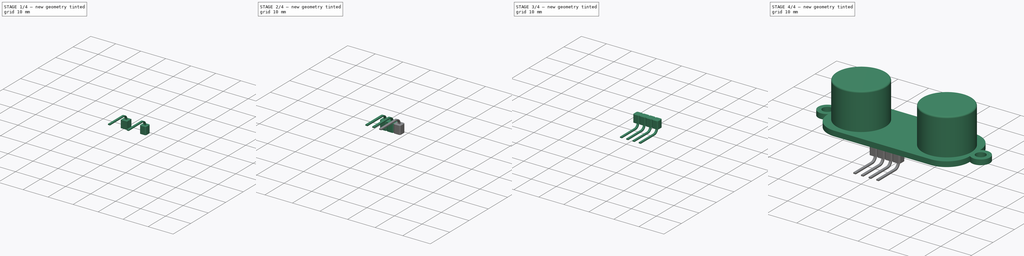
[diagram: build sequence overview — one tinted view per stage of 4, left to right]
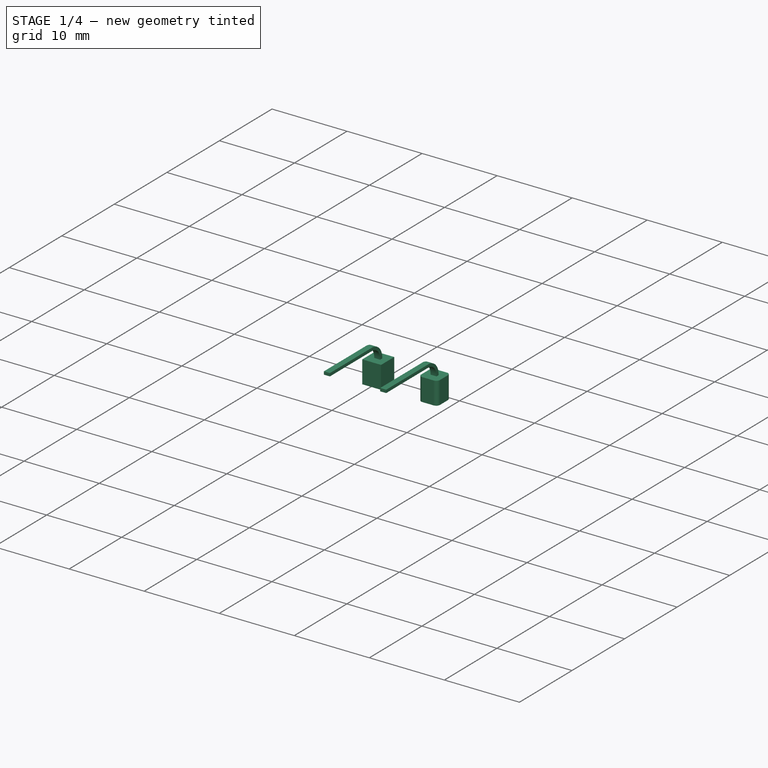
[diagram: stage 1 of 4 — iso view after this stage's code; geometry added in this stage tinted green]
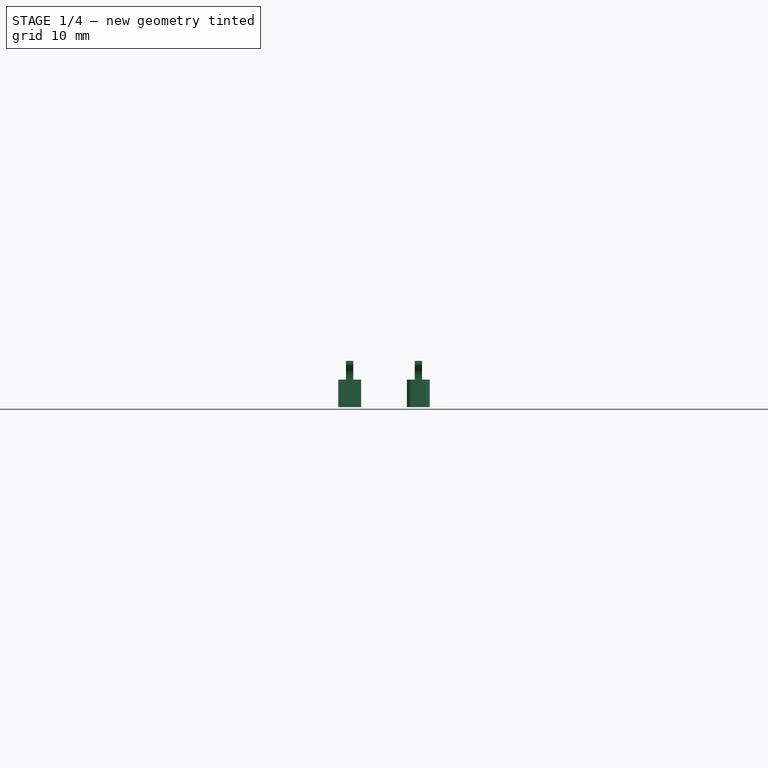
[diagram: stage 1 of 4 — front view after this stage's code; geometry added in this stage tinted green]
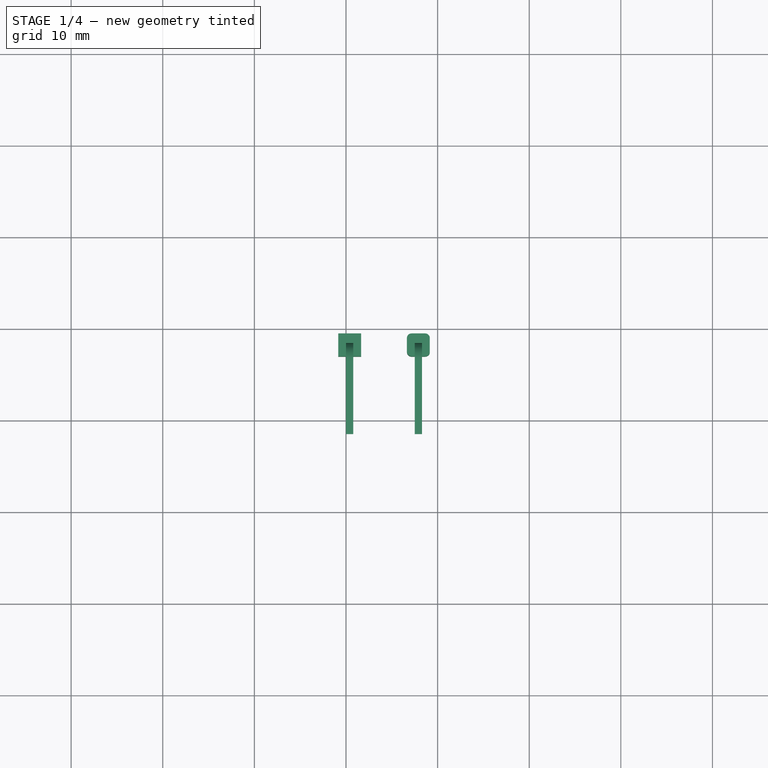
[diagram: stage 1 of 4 — top view after this stage's code; geometry added in this stage tinted green]
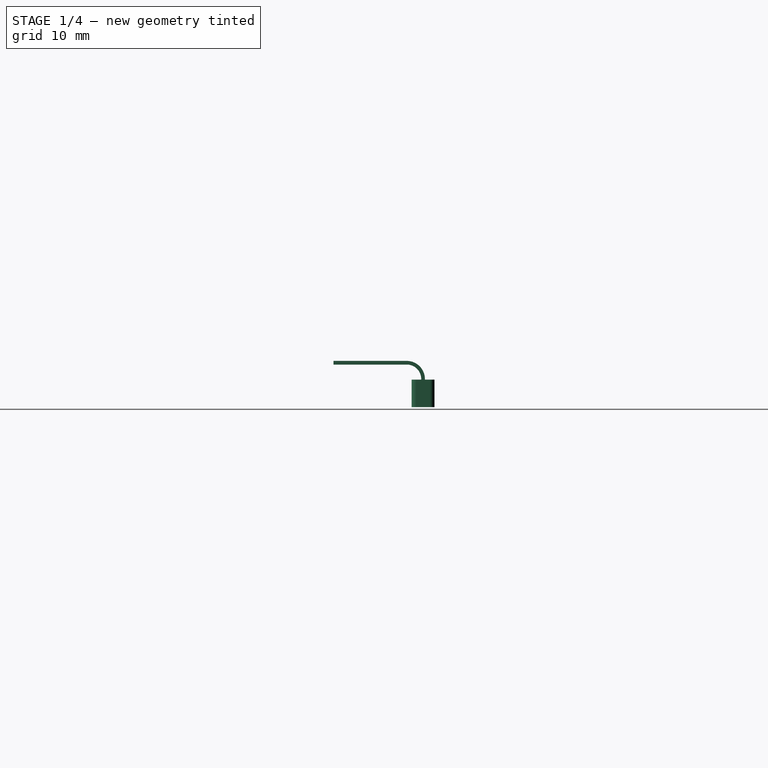
[diagram: stage 1 of 4 — right view after this stage's code; geometry added in this stage tinted green]
FCSTD DOCUMENT  (FreeCAD 0.14R3702 (Git))
Label: BAT-ultrasonic
License: CC-BY 3.0
LicenseURL: http://creativecommons.org/licenses/by/3.0/
objects: PartDesign::Pad×7, Sketcher::SketchObject×5, Part::Fillet×4, PartDesign::Fillet×2, Part::MultiFuse×1
note: 26 computed .brp shape members not serialized (recipe doc carries the construction recipe); baked Part::Feature solids carry a one-line shape summary decoded from their .brp

FEATURE [Sketcher::SketchObject] Sketch002
  ExternalGeometry = -> [Fillet001]
  Placement = pos=(0,0,13.68) rot=(0,0,1;0rad)
  Support = -> Fillet001 [Face18]
  sketch-geometry (15):
    g0: Circle CenterX=-14 CenterY=0 CenterZ=0 NormalX=0 NormalY=0 NormalZ=1 Radius=6.75
    g1: Circle CenterX=-14 CenterY=0 CenterZ=0 NormalX=0 NormalY=0 NormalZ=1 Radius=6
    g2: Circle CenterX=-14 CenterY=0 CenterZ=0 NormalX=0 NormalY=0 NormalZ=1 Radius=5.25
    g3: Circle CenterX=-14 CenterY=0 CenterZ=0 NormalX=0 NormalY=0 NormalZ=1 Radius=4.25
    g4: Circle CenterX=-14 CenterY=0 CenterZ=0 NormalX=0 NormalY=0 NormalZ=1 Radius=3.5
    g5: Circle CenterX=-14 CenterY=0 CenterZ=0 NormalX=0 NormalY=0 NormalZ=1 Radius=2.5
    g6: Circle CenterX=-14 CenterY=0 CenterZ=0 NormalX=0 NormalY=0 NormalZ=1 Radius=0.8
    g7: Circle CenterX=-14 CenterY=0 CenterZ=0 NormalX=0 NormalY=0 NormalZ=1 Radius=1.75
    g8: Circle [constr] CenterX=-14 CenterY=0 CenterZ=0 NormalX=0 NormalY=0 NormalZ=1 Radius=0.5
    g9: LineSegment StartX=-17.6745 StartY=6.53818 StartZ=0 EndX=-21.5 EndY=0.0169203 EndZ=0
    g10: LineSegment StartX=-21.5 StartY=0.0169203 StartZ=0 EndX=-17.825 EndY=-6.45133 EndZ=0
    g11: LineSegment StartX=-17.825 StartY=-6.45133 StartZ=0 EndX=-10.2647 EndY=-6.50363 EndZ=0
    g12: LineSegment StartX=-10.2647 StartY=-6.50363 StartZ=0 EndX=-6.5005 EndY=-0.0868491 EndZ=0
    g13: LineSegment StartX=-17.6745 StartY=6.53818 StartZ=0 EndX=-10.2354 EndY=6.48671 EndZ=0
    g14: LineSegment StartX=-10.2354 StartY=6.48671 StartZ=0 EndX=-6.5005 EndY=-0.0868491 EndZ=0
  constraints (35):
    c: Coincident(g0,g-3)
    c: Coincident(g1,g0)
    c: Coincident(g2,g0)
    c: Coincident(g3,g0)
    c: Coincident(g4,g0)
    c: Coincident(g5,g0)
    c: Radius(g0) = 6.75
    c: Radius(g1) = 6
    c: Radius(g2) = 5.25
    c: Radius(g3) = 4.25
    c: Radius(g4) = 3.5
    c: Radius(g5) = 2.5
    c: Coincident(g6,g0)
    c: Coincident(g7,g0)
    c: Radius(g7) = 1.75
    c: Radius(g6) = 0.8
    c: Coincident(g8,g0)
    c: Radius(g8) = 0.5
    c: PointOnObject(g9,g-3)
    c: PointOnObject(g9,g-3)
    c: Coincident(g10,g9)
    c: PointOnObject(g10,g-3)
    c: Coincident(g11,g10)
    c: PointOnObject(g11,g-3)
    c: Coincident(g12,g11)
    c: Coincident(g13,g9)
    c: PointOnObject(g13,g-3)
    c: Coincident(g14,g13)
    c: PointOnObject(g14,g-3)
    c: PointOnObject(g12,g-3)
    c: Coincident(g12,g14)
    c: Angle(g14,g12) = 2.0944
    c: Angle(g9,g13) = 2.0944
    c: Angle(g12,g11) = 2.0944
    c: Angle(g10,g9) = 2.0944
FEATURE [Sketcher::SketchObject] Sketch004
  Placement = pos=(0,0,0) rot=(0.57735,0.57735,0.57735;2.0944rad)
  sketch-geometry (8):
    g0: LineSegment StartX=8.47945 StartY=5.04306 StartZ=0 EndX=16.4794 EndY=5.04306 EndZ=0
    g1: LineSegment StartX=8.47945 StartY=5.04306 StartZ=0 EndX=8.47945 EndY=4.64306 EndZ=0
    g2: LineSegment StartX=8.47945 StartY=4.64306 StartZ=0 EndX=16.4794 EndY=4.64306 EndZ=0
    g3: LineSegment StartX=18.0526 StartY=3.06994 StartZ=0 EndX=18.0526 EndY=0 EndZ=0
    g4: LineSegment StartX=18.4526 StartY=3.06994 StartZ=0 EndX=18.4526 EndY=0 EndZ=0
    g5: LineSegment StartX=18.0526 StartY=0 StartZ=0 EndX=18.4526 EndY=0 EndZ=0
    g6: ArcOfCircle CenterX=16.4794 CenterY=3.06994 CenterZ=0 NormalX=0 NormalY=0 NormalZ=1 Radius=1.57312 StartAngle=0 EndAngle=1.5708
    g7: ArcOfCircle CenterX=16.4794 CenterY=3.06994 CenterZ=0 NormalX=0 NormalY=0 NormalZ=1 Radius=1.97312 StartAngle=0 EndAngle=1.5708
  constraints (20):
    c: Horizontal(g0)
    c: Coincident(g1,g0)
    c: Vertical(g1)
    c: Coincident(g2,g1)
    c: Horizontal(g2)
    c: Vertical(g3)
    c: Vertical(g4)
    c: Coincident(g5,g3)
    c: Horizontal(g5)
    c: DistanceY(g1) = -0.4
    c: Equal(g1,g5)
    c: Coincident(g5,g4)
    c: Equal(g4,g3)
    c: Equal(g2,g0)
    c: Tangent(g2,g6)
    c: Tangent(g3,g6)
    c: Tangent(g0,g7)
    c: Tangent(g4,g7)
    c: DistanceX(g0) = 8
    c: PointOnObject(g4,g-1)
FEATURE [PartDesign::Pad] Pad003
  Length = 0.8
  Length2 = 100
  Placement = pos=(0,0,0) rot=(0.57735,0.57735,0.57735;2.0944rad)
  Sketch = -> Sketch004
  Type = 0
FEATURE [PartDesign::Pad] Pad006
  Length = 3
  Length2 = 100
  Placement = pos=(0,0,0) rot=(0.57735,0.57735,0.57735;2.0944rad)
  Reversed = true
  Sketch = -> Sketch005
  Type = 0
FEATURE [PartDesign::Pad] Pad007
  Length = 3
  Length2 = 100
  Placement = pos=(0,0,0) rot=(0.57735,0.57735,0.57735;2.0944rad)
  Reversed = true
  Sketch = -> Sketch005
  Type = 0
FEATURE [Part::Fillet] Fillet005  label="Pin4"
  Base = -> Pad007
  Edges = 4 edges r=0.5: [Edge29,Edge30,Edge32,Edge34]
  Placement = pos=(7.5,0,0) rot=(0,0,1;0rad)
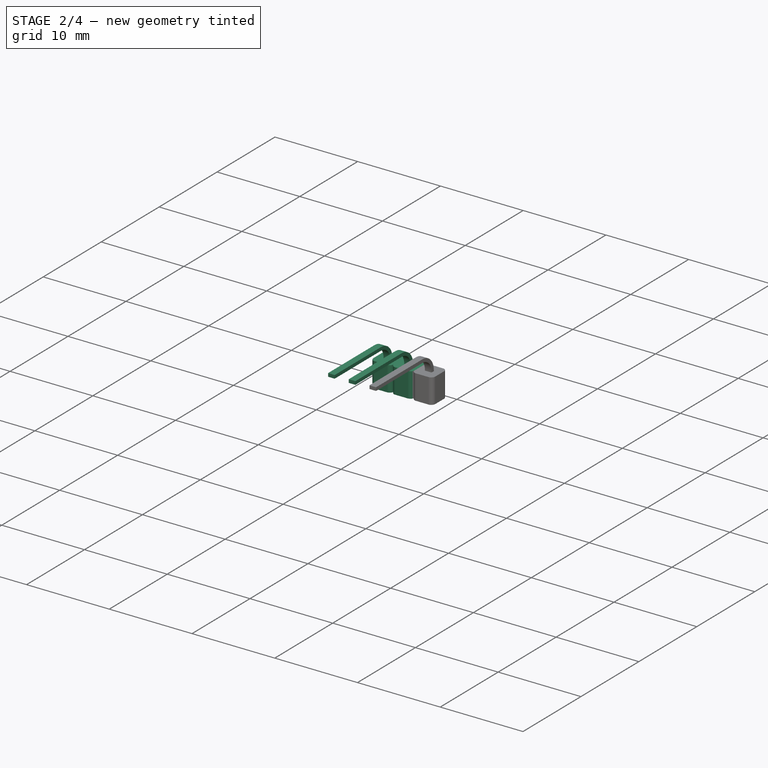
[diagram: stage 2 of 4 — iso view after this stage's code; geometry added in this stage tinted green]
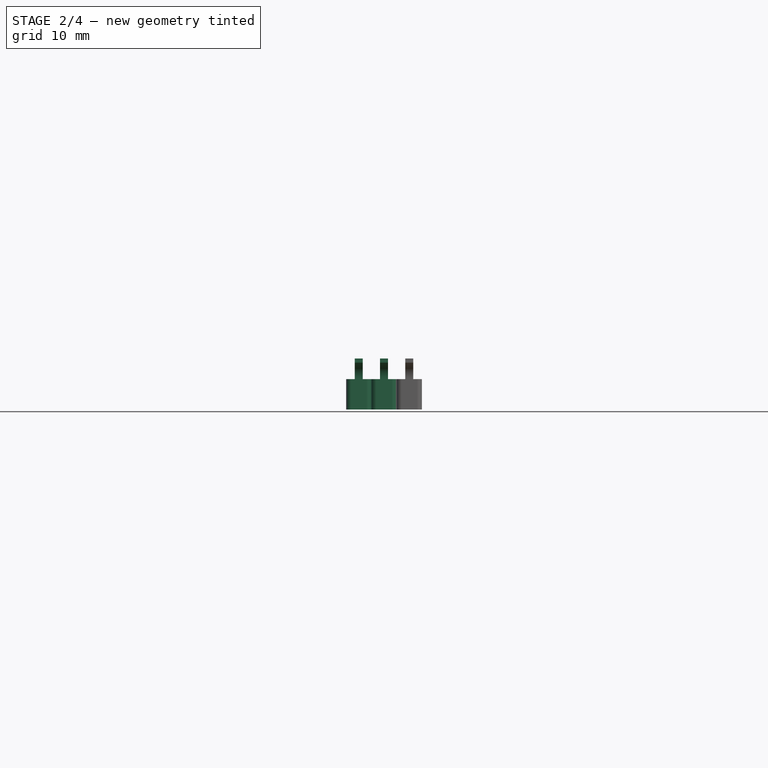
[diagram: stage 2 of 4 — front view after this stage's code; geometry added in this stage tinted green]
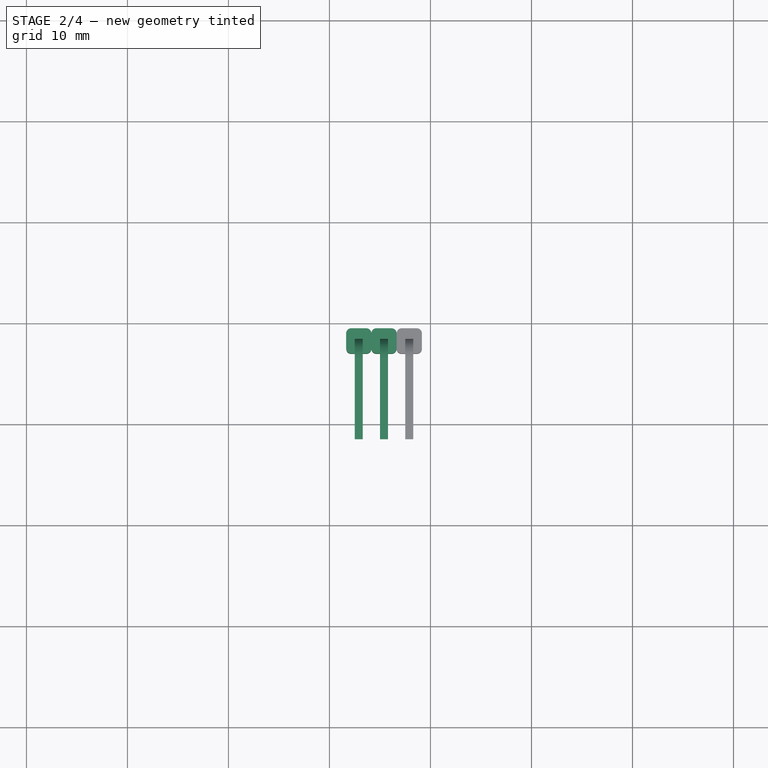
[diagram: stage 2 of 4 — top view after this stage's code; geometry added in this stage tinted green]
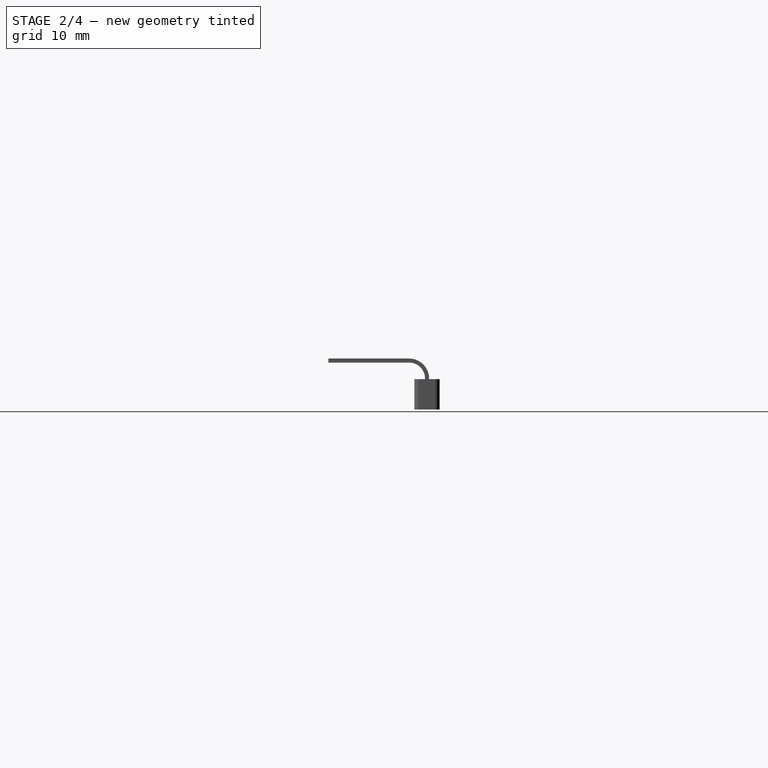
[diagram: stage 2 of 4 — right view after this stage's code; geometry added in this stage tinted green]
FEATURE [PartDesign::Pad] Pad005
  Length = 3
  Length2 = 100
  Placement = pos=(0,0,0) rot=(0.57735,0.57735,0.57735;2.0944rad)
  Reversed = true
  Sketch = -> Sketch005
  Type = 0
FEATURE [Part::Fillet] Fillet003  label="Pin2"
  Base = -> Pad005
  Edges = 4 edges r=0.5: [Edge29,Edge30,Edge32,Edge34]
  Placement = pos=(2.5,0,0) rot=(0,0,1;0rad)
FEATURE [Part::Fillet] Fillet004  label="Pin3"
  Base = -> Pad006
  Edges = 4 edges r=0.5: [Edge29,Edge30,Edge32,Edge34]
  Placement = pos=(5,0,0) rot=(0,0,1;0rad)
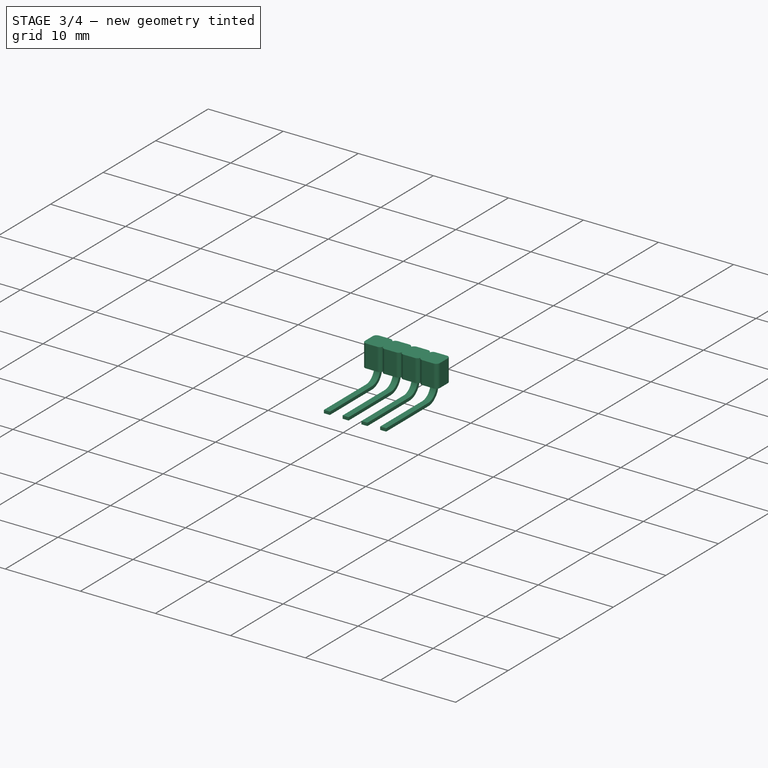
[diagram: stage 3 of 4 — iso view after this stage's code; geometry added in this stage tinted green]
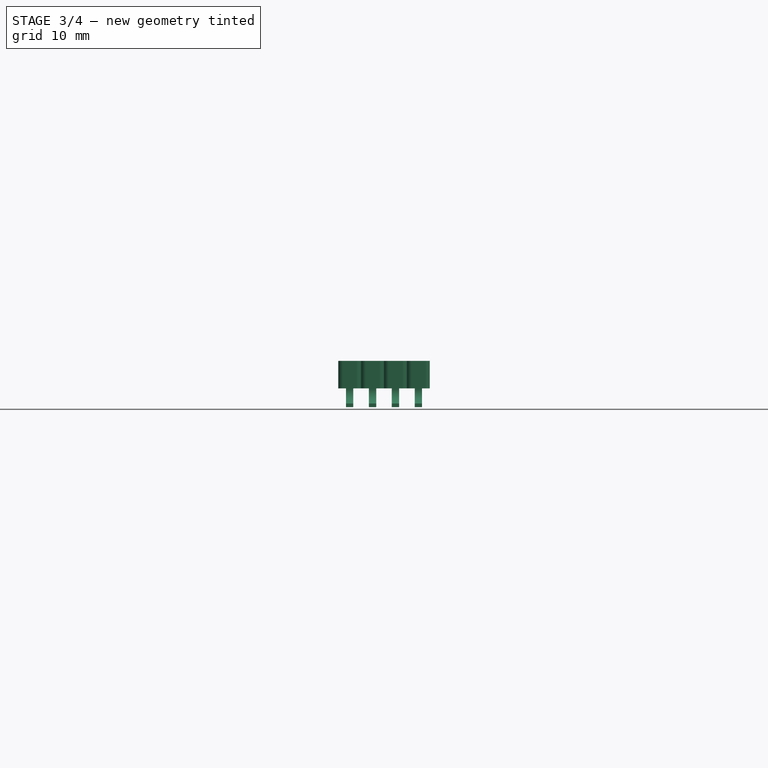
[diagram: stage 3 of 4 — front view after this stage's code; geometry added in this stage tinted green]
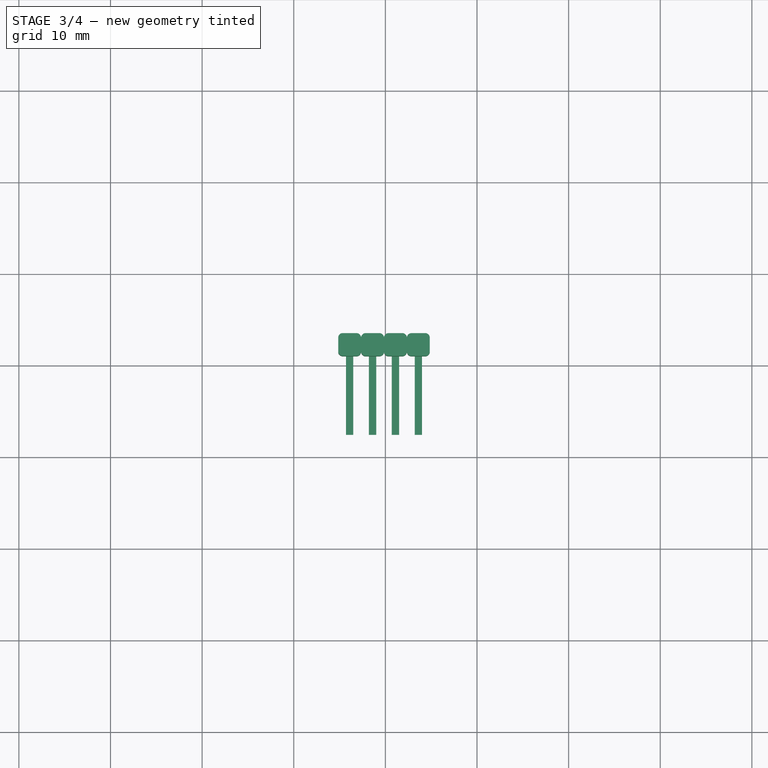
[diagram: stage 3 of 4 — top view after this stage's code; geometry added in this stage tinted green]
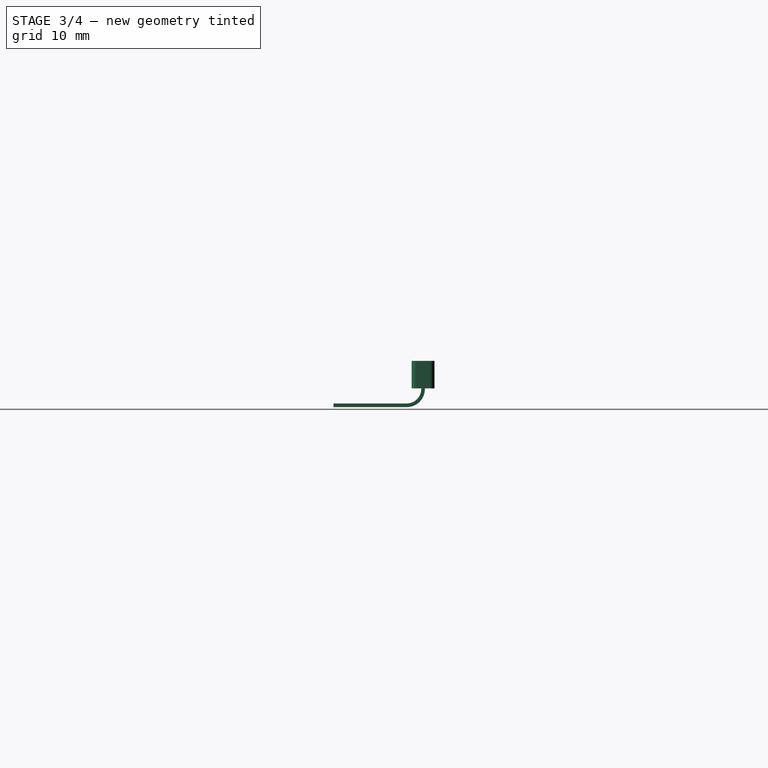
[diagram: stage 3 of 4 — right view after this stage's code; geometry added in this stage tinted green]
FEATURE [Sketcher::SketchObject] Sketch005
  ExternalGeometry = -> [Pad003]
  Placement = pos=(0,0,0) rot=(0.707107,0.707107,0;3.14159rad)
  Support = -> Pad003 [Face7]
  sketch-geometry (10):
    g0: LineSegment StartX=17.0026 StartY=1.65 StartZ=0 EndX=19.5026 EndY=1.65 EndZ=0
    g1: LineSegment StartX=19.5026 StartY=1.65 StartZ=0 EndX=19.5026 EndY=-0.850002 EndZ=0
    g2: LineSegment StartX=19.5026 StartY=-0.850002 StartZ=0 EndX=17.0026 EndY=-0.850002 EndZ=0
    g3: LineSegment StartX=17.0026 StartY=-0.850002 StartZ=0 EndX=17.0026 EndY=1.65 EndZ=0
    g4: LineSegment [constr] StartX=18.2526 StartY=0.399998 StartZ=0 EndX=18.4526 EndY=0 EndZ=0
    g5: LineSegment [constr] StartX=18.2526 StartY=0.399998 StartZ=0 EndX=18.0526 EndY=0 EndZ=0
    g6: LineSegment [constr] StartX=18.2526 StartY=0.399998 StartZ=0 EndX=17.0026 EndY=1.65 EndZ=0
    g7: LineSegment [constr] StartX=18.2526 StartY=0.399998 StartZ=0 EndX=19.5026 EndY=1.65 EndZ=0
    g8: LineSegment [constr] StartX=17.0026 StartY=-0.850002 StartZ=0 EndX=18.2526 EndY=0.399998 EndZ=0
    g9: LineSegment [constr] StartX=19.5026 StartY=-0.850002 StartZ=0 EndX=18.2526 EndY=0.399998 EndZ=0
  constraints (26):
    c: Coincident(g0,g1)
    c: Coincident(g1,g2)
    c: Coincident(g2,g3)
    c: Coincident(g3,g0)
    c: Horizontal(g0)
    c: Horizontal(g2)
    c: Vertical(g1)
    c: Vertical(g3)
    c: Equal(g1,g0)
    c: DistanceX(g0) = 2.5
    c: Coincident(g4,g-6)
    c: Coincident(g5,g-6)
    c: Coincident(g5,g4)
    c: Coincident(g6,g4)
    c: Coincident(g6,g0)
    c: Angle(g5,g4) = 0.927299
    c: Angle(g-6,g5) = 1.10714
    c: Coincident(g7,g0)
    c: Equal(g6,g7)
    c: Coincident(g7,g4)
    c: Coincident(g8,g2)
    c: Coincident(g8,g4)
    c: Coincident(g9,g1)
    c: Coincident(g9,g4)
    c: Equal(g8,g6)
    c: Equal(g7,g9)
FEATURE [PartDesign::Pad] Pad004
  Length = 3
  Length2 = 100
  Placement = pos=(0,0,0) rot=(0.57735,0.57735,0.57735;2.0944rad)
  Reversed = true
  Sketch = -> Sketch005
  Type = 0
FEATURE [Part::Fillet] Fillet002  label="Pin"
  Base = -> Pad004
  Edges = 4 edges r=0.5: [Edge29,Edge30,Edge32,Edge34]
FEATURE [Part::MultiFuse] Fusion001  label="headers"
  Placement = pos=(4,-26,0) rot=(0,1,0;3.14159rad)
  Shapes = -> [Fillet005,Fillet002,Fillet003,Fillet004]
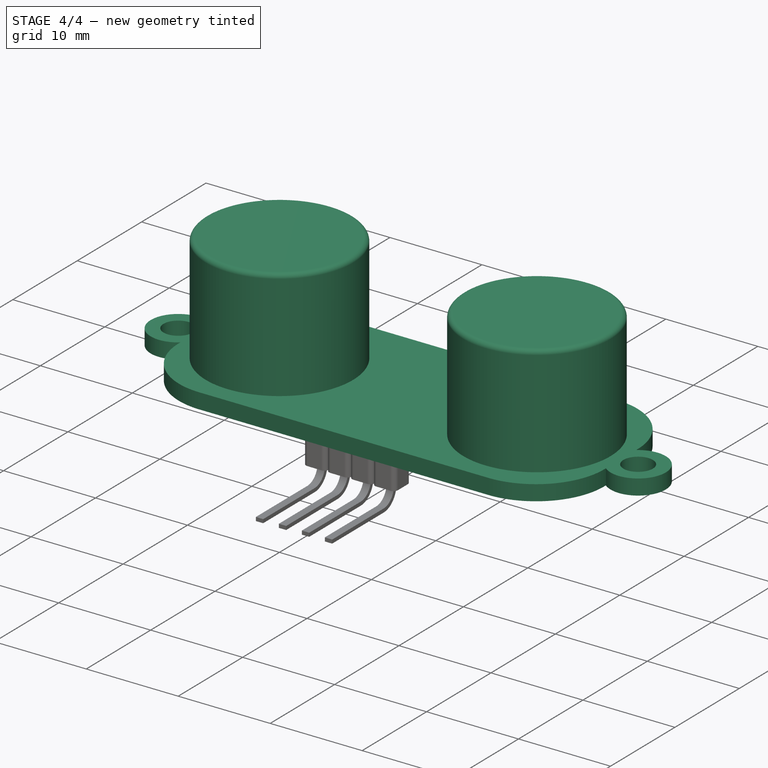
[diagram: stage 4 of 4 — iso view after this stage's code; geometry added in this stage tinted green]
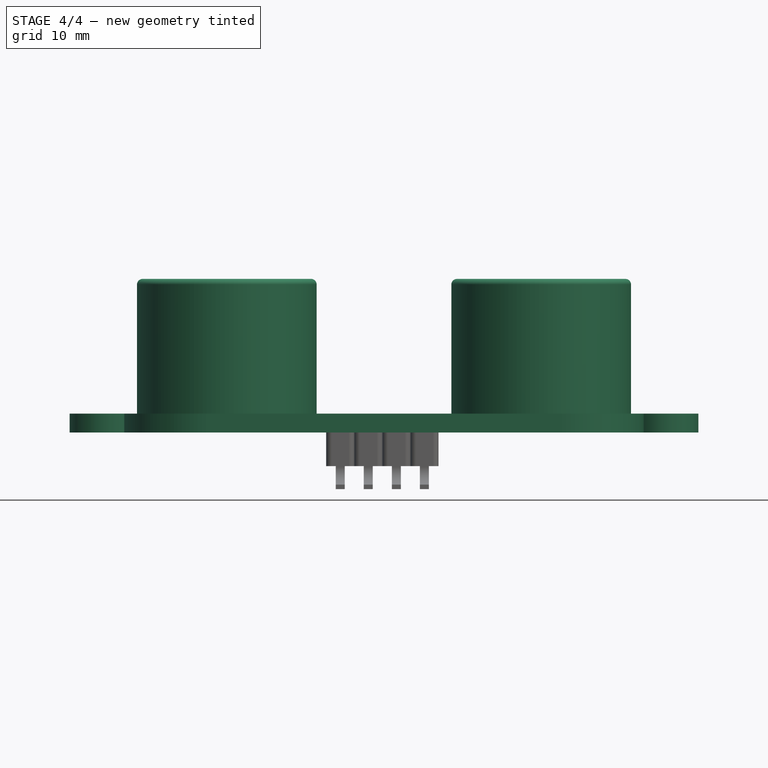
[diagram: stage 4 of 4 — front view after this stage's code; geometry added in this stage tinted green]
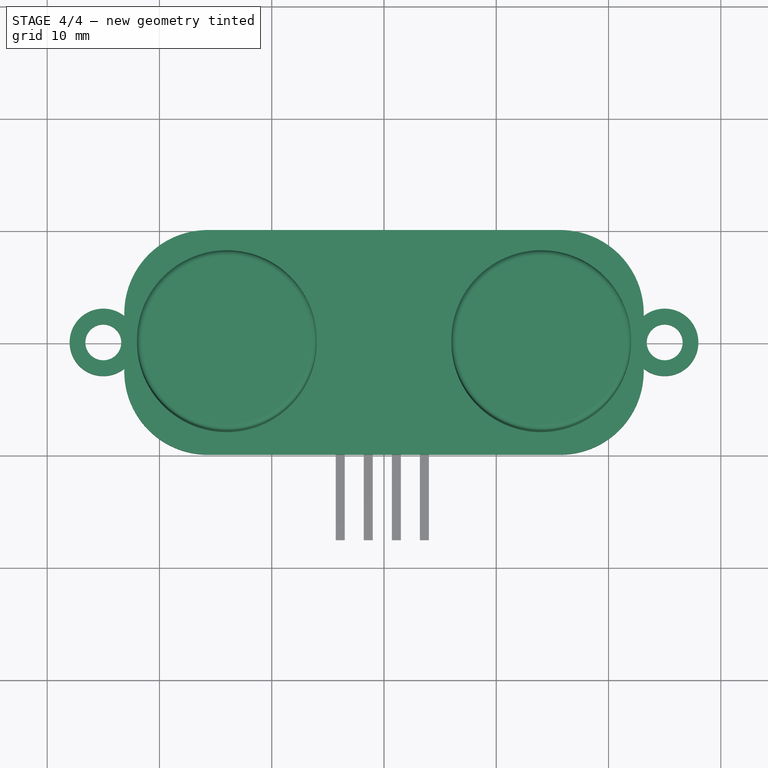
[diagram: stage 4 of 4 — top view after this stage's code; geometry added in this stage tinted green]
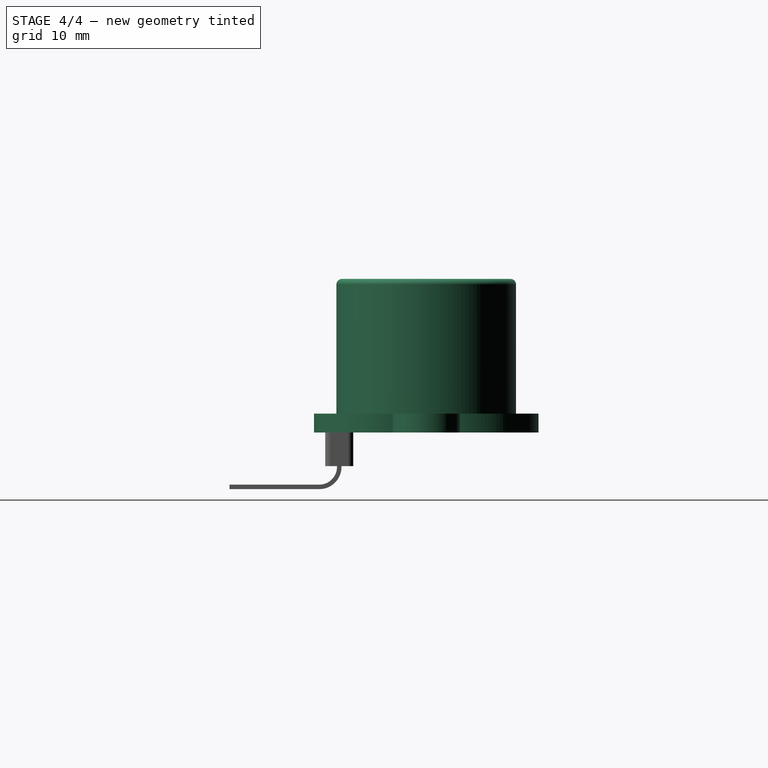
[diagram: stage 4 of 4 — right view after this stage's code; geometry added in this stage tinted green]
FEATURE [Sketcher::SketchObject] Sketch
  sketch-geometry (15):
    g0: LineSegment StartX=-15.86 StartY=-10 StartZ=0 EndX=15.86 EndY=-10 EndZ=0
    g1: ArcOfCircle CenterX=-25 CenterY=0 CenterZ=0 NormalX=0 NormalY=0 NormalZ=1 Radius=3.00012 StartAngle=0.897592 EndAngle=5.38559
    g2: ArcOfCircle CenterX=25 CenterY=0 CenterZ=0 NormalX=0 NormalY=0 NormalZ=1 Radius=3.00012 StartAngle=4.03918 EndAngle=8.52719
    g3: Circle CenterX=-25 CenterY=0 CenterZ=0 NormalX=0 NormalY=0 NormalZ=1 Radius=1.6
    g4: Circle CenterX=25 CenterY=0 CenterZ=0 NormalX=0 NormalY=0 NormalZ=1 Radius=1.6
    g5: LineSegment [constr] StartX=-25 StartY=31.675 StartZ=0 EndX=25 EndY=31.675 EndZ=0
    g6: LineSegment [constr] StartX=-25 StartY=31.675 StartZ=0 EndX=-25 EndY=0 EndZ=0
    g7: LineSegment [constr] StartX=3.61551 StartY=10 StartZ=0 EndX=3.61551 EndY=-10 EndZ=0
    g8: LineSegment StartX=-15.86 StartY=10 StartZ=0 EndX=15.86 EndY=10 EndZ=0
    g9: ArcOfCircle CenterX=-15.6958 CenterY=2.56491 CenterZ=0 NormalX=0 NormalY=0 NormalZ=1 Radius=7.4369 StartAngle=1.59288 EndAngle=3.17109
    g10: ArcOfCircle CenterX=-15.6958 CenterY=-2.56491 CenterZ=0 NormalX=0 NormalY=0 NormalZ=1 Radius=7.4369 StartAngle=3.11209 EndAngle=4.69031
    g11: ArcOfCircle CenterX=15.6958 CenterY=2.56491 CenterZ=0 NormalX=0 NormalY=0 NormalZ=1 Radius=7.4369 StartAngle=6.25369 EndAngle=7.8319
    g12: ArcOfCircle CenterX=15.6958 CenterY=-2.56491 CenterZ=0 NormalX=0 NormalY=0 NormalZ=1 Radius=7.4369 StartAngle=4.73447 EndAngle=6.31268
    g13: LineSegment [constr] StartX=-28.0001 StartY=-22.7357 StartZ=0 EndX=27.9999 EndY=-22.7357 EndZ=0
    g14: LineSegment [constr] StartX=-28.0001 StartY=1.36738e-07 StartZ=0 EndX=-28.0001 EndY=-22.7357 EndZ=0
  constraints (43):
    c: Coincident(g3,g1)
    c: Coincident(g4,g2)
    c: Horizontal(g5)
    c: DistanceX(g5) = 50
    c: Coincident(g6,g5)
    c: Vertical(g6)
    c: Coincident(g1,g6)
    c: DistanceY(g7) = -20
    c: Symmetric(g7,g7,g-1)
    c: Symmetric(g8,g0,g-1)
    c: Equal(g8,g0)
    c: Equal(g2,g1)
    c: Radius(g3) = 1.6
    c: Coincident(g9,g1)
    c: Coincident(g8,g9)
    c: Equal(g4,g3)
    c: Symmetric(g2,g1,g-2)
    c: Symmetric(g2,g1,g-2)
    c: Coincident(g11,g8)
    c: Coincident(g0,g12)
    c: Coincident(g10,g0)
    c: Coincident(g10,g1)
    c: Coincident(g12,g2)
    c: Horizontal(g8)
    c: Horizontal(g0)
    c: PointOnObject(g7,g8)
    c: DistanceX(g8) = 31.72
    c: PointOnObject(g1,g-1)
    c: Symmetric(g8,g8,g-2)
    c: Horizontal(g13)
    c: DistanceX(g13) = 56
    c: PointOnObject(g14,g1)
    c: Coincident(g14,g13)
    c: Vertical(g14)
    c: Tangent(g14,g1)
    c: Equal(g9,g11)
    c: Equal(g12,g11)
    c: Equal(g10,g9)
    c: Coincident(g11,g2)
    c: Symmetric(g5,g5,g-2)
    c: Symmetric(g2,g2,g-1)
    c: Symmetric(g1,g1,g-1)
    c: Symmetric(g2,g1,g-2)
FEATURE [PartDesign::Pad] Pad
  Length = 1.68
  Length2 = 100
  Sketch = -> Sketch
  Type = 0
FEATURE [Sketcher::SketchObject] Sketch001
  ExternalGeometry = -> [Pad]
  Placement = pos=(0,0,1.68) rot=(0,0,1;0rad)
  Support = -> Pad [Face12]
  sketch-geometry (3):
    g0: Circle CenterX=-14 CenterY=0 CenterZ=0 NormalX=0 NormalY=0 NormalZ=1 Radius=8
    g1: Circle CenterX=14 CenterY=0 CenterZ=0 NormalX=0 NormalY=0 NormalZ=1 Radius=8
    g2: LineSegment [constr] StartX=-25 StartY=0 StartZ=0 EndX=-14 EndY=0 EndZ=0
  constraints (10):
    c: PointOnObject(g0,g-1)
    c: PointOnObject(g1,g-1)
    c: Symmetric(g0,g1,g-2)
    c: Equal(g0,g1)
    c: Radius(g1) = 8
    c: Coincident(g2,g-3)
    c: Coincident(g2,g0)
    c: Horizontal(g2)
    c: Tangent(g2,g-1)
    c: DistanceX(g2) = 11
FEATURE [PartDesign::Pad] Pad001
  Length = 12
  Length2 = 100
  Sketch = -> Sketch001
  Type = 0
FEATURE [PartDesign::Fillet] Fillet
  Base = -> Pad001 [Edge36]
  Radius = 0.5
FEATURE [PartDesign::Fillet] Fillet001
  Base = -> Fillet [Edge38]
  Radius = 0.5
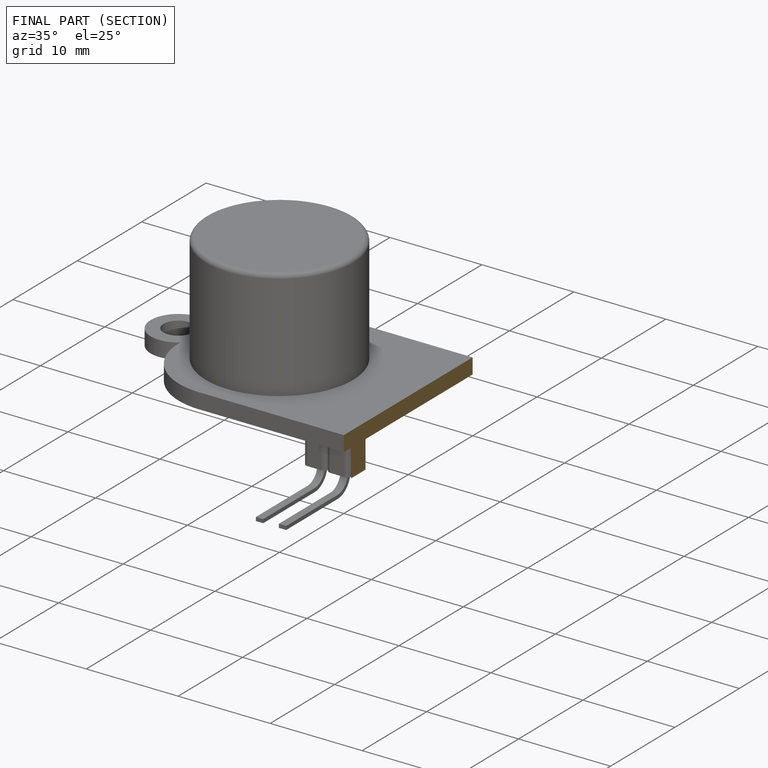
[diagram: finished part — half-section view (interior)]
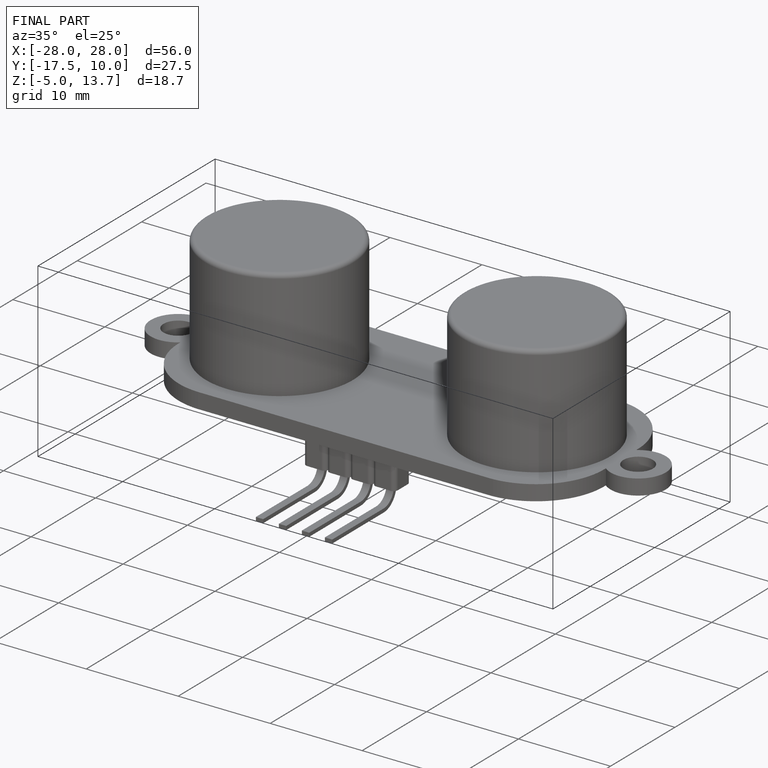
[diagram: finished part — iso view with bounding-box wireframe]
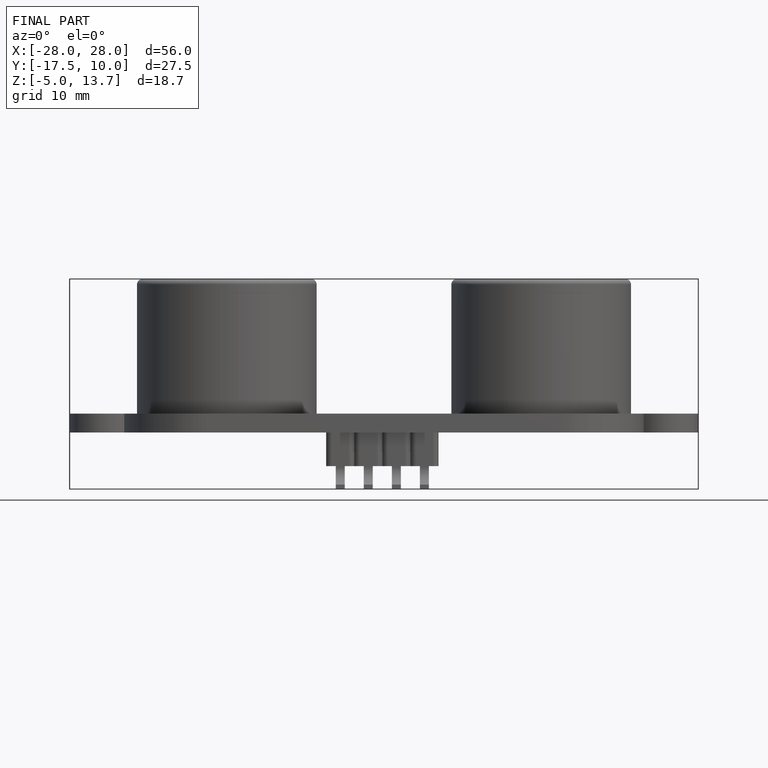
[diagram: finished part — front view with bounding-box wireframe]
